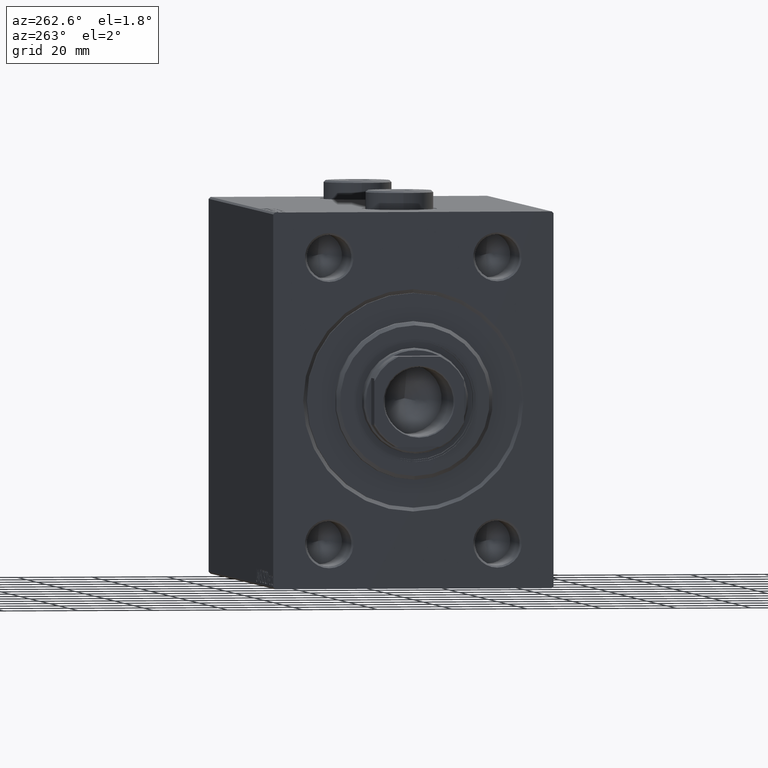
[diagram: clean part render]
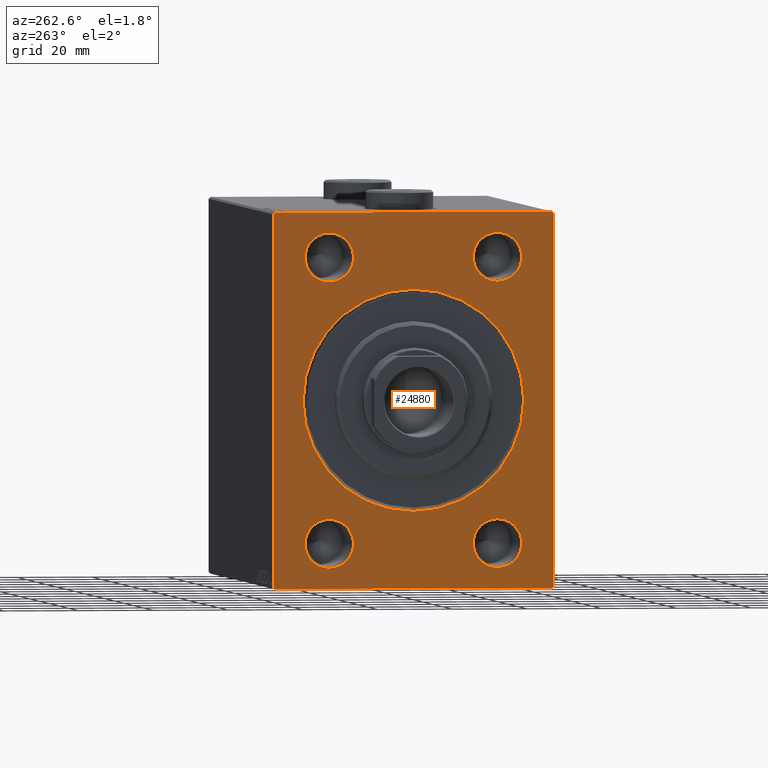
[diagram: same view with one face highlighted and labeled with its STEP entity id]
A machine part, auxiliary view. The second image highlights one B-rep face of the part: STEP entity #24880.
In plain terms, the highlighted planar face has unit normal (1, 0, 0).
Its self-contained STEP definition (entity closure, byte-faithful):
#301 = CIRCLE ( 'NONE', #6180, 6.500000000000005329 ) ;
#668 = EDGE_CURVE ( 'NONE', #698, #16464, #34473, .T. ) ;
#698 = VERTEX_POINT ( 'NONE', #41658 ) ;
#1416 = CARTESIAN_POINT ( 'NONE',  ( 0.000000000000000000, 22.50000000000000000, 37.99999999999999289 ) ) ;
#1634 = CARTESIAN_POINT ( 'NONE',  ( 0.000000000000000000, 37.50000000000000711, -49.50000000000000000 ) ) ;
#1817 = CARTESIAN_POINT ( 'NONE',  ( 0.000000000000000000, 22.50000000000000000, -31.50000000000000000 ) ) ;
#2411 = ORIENTED_EDGE ( 'NONE', *, *, #23372, .T. ) ;
#2767 = ORIENTED_EDGE ( 'NONE', *, *, #19563, .T. ) ;
#2847 = CIRCLE ( 'NONE', #11719, 6.500000000000005329 ) ;
#2970 = VERTEX_POINT ( 'NONE', #5019 ) ;
#3113 = VECTOR ( 'NONE', #23032, 1000.000000000000000 ) ;
#3367 = CARTESIAN_POINT ( 'NONE',  ( 0.000000000000000000, -22.50000000000000000, -44.50000000000001421 ) ) ;
#3968 = EDGE_LOOP ( 'NONE', ( #6667, #5977 ) ) ;
#3976 = LINE ( 'NONE', #32408, #12537 ) ;
#4019 = EDGE_CURVE ( 'NONE', #38139, #36718, #34570, .T. ) ;
#4069 = DIRECTION ( 'NONE',  ( 0.000000000000000000, 0.000000000000000000, -1.000000000000000000 ) ) ;
#4683 = EDGE_CURVE ( 'NONE', #24090, #18145, #10948, .T. ) ;
#4890 = AXIS2_PLACEMENT_3D ( 'NONE', #13887, #14345, #45331 ) ;
#5019 = CARTESIAN_POINT ( 'NONE',  ( 0.000000000000000000, 3.612708057484695548E-15, -29.50000000000002842 ) ) ;
#5309 = VERTEX_POINT ( 'NONE', #10897 ) ;
#5347 = EDGE_CURVE ( 'NONE', #16464, #698, #30203, .T. ) ;
#5411 = VERTEX_POINT ( 'NONE', #7658 ) ;
#5635 = DIRECTION ( 'NONE',  ( 1.000000000000000000, 0.000000000000000000, 0.000000000000000000 ) ) ;
#5653 = CARTESIAN_POINT ( 'NONE',  ( 0.000000000000000000, 22.50000000000000000, 31.49999999999998579 ) ) ;
#5977 = ORIENTED_EDGE ( 'NONE', *, *, #17986, .T. ) ;
#5993 = DIRECTION ( 'NONE',  ( -0.000000000000000000, 0.7071067811865425767, -0.7071067811865525687 ) ) ;
#6180 = AXIS2_PLACEMENT_3D ( 'NONE', #23803, #38109, #10157 ) ;
#6667 = ORIENTED_EDGE ( 'NONE', *, *, #35552, .T. ) ;
#6706 = ORIENTED_EDGE ( 'NONE', *, *, #14516, .F. ) ;
#7471 = FACE_OUTER_BOUND ( 'NONE', #39274, .T. ) ;
#7658 = CARTESIAN_POINT ( 'NONE',  ( 0.000000000000000000, -37.50000000000000000, 49.49999999999995737 ) ) ;
#8328 = EDGE_CURVE ( 'NONE', #18145, #24090, #38977, .T. ) ;
#9764 = DIRECTION ( 'NONE',  ( -0.000000000000000000, -0.7071067811865474617, 0.7071067811865474617 ) ) ;
#10157 = DIRECTION ( 'NONE',  ( 0.000000000000000000, 0.000000000000000000, -1.000000000000000000 ) ) ;
#10593 = LINE ( 'NONE', #24690, #40887 ) ;
#10897 = CARTESIAN_POINT ( 'NONE',  ( 0.000000000000000000, -37.50000000000000000, -49.49999999999997158 ) ) ;
#10948 = CIRCLE ( 'NONE', #24243, 6.500000000000005329 ) ;
#11032 = CARTESIAN_POINT ( 'NONE',  ( 0.000000000000000000, -22.50000000000000000, 31.49999999999998579 ) ) ;
#11255 = CARTESIAN_POINT ( 'NONE',  ( 0.000000000000000000, -22.50000000000000000, 37.99999999999999289 ) ) ;
#11275 = DIRECTION ( 'NONE',  ( 0.000000000000000000, -1.000000000000000000, -2.775557561562891844E-16 ) ) ;
#11342 = VERTEX_POINT ( 'NONE', #43338 ) ;
#11709 = CARTESIAN_POINT ( 'NONE',  ( 0.000000000000000000, 37.50000000000000711, -50.00000000000000000 ) ) ;
#11719 = AXIS2_PLACEMENT_3D ( 'NONE', #11255, #25358, #25134 ) ;
#11778 = EDGE_CURVE ( 'NONE', #5411, #22514, #30357, .T. ) ;
#12259 = EDGE_CURVE ( 'NONE', #25365, #37791, #30186, .T. ) ;
#12267 = ORIENTED_EDGE ( 'NONE', *, *, #11778, .T. ) ;
#12537 = VECTOR ( 'NONE', #18059, 1000.000000000000000 ) ;
#13221 = CARTESIAN_POINT ( 'NONE',  ( 0.000000000000000000, -37.50000000000000000, 49.49999999999995737 ) ) ;
#13599 = CARTESIAN_POINT ( 'NONE',  ( 0.000000000000000000, -22.50000000000000000, 44.50000000000000000 ) ) ;
#13652 = ORIENTED_EDGE ( 'NONE', *, *, #8328, .T. ) ;
#13887 = CARTESIAN_POINT ( 'NONE',  ( 0.000000000000000000, -22.50000000000000000, -38.00000000000000711 ) ) ;
#14345 = DIRECTION ( 'NONE',  ( 1.000000000000000000, 0.000000000000000000, 0.000000000000000000 ) ) ;
#14377 = CARTESIAN_POINT ( 'NONE',  ( 0.000000000000000000, 22.50000000000000000, -44.50000000000001421 ) ) ;
#14384 = FACE_BOUND ( 'NONE', #38874, .T. ) ;
#14433 = CARTESIAN_POINT ( 'NONE',  ( 0.000000000000000000, 37.00000000000001421, -50.00000000000000000 ) ) ;
#14516 = EDGE_CURVE ( 'NONE', #23328, #11342, #33215, .T. ) ;
#15048 = AXIS2_PLACEMENT_3D ( 'NONE', #16172, #15934, #40442 ) ;
#15128 = CARTESIAN_POINT ( 'NONE',  ( 0.000000000000000000, -22.50000000000000000, -38.00000000000000711 ) ) ;
#15182 = LINE ( 'NONE', #42939, #18372 ) ;
#15934 = DIRECTION ( 'NONE',  ( 1.000000000000000000, 0.000000000000000000, 0.000000000000000000 ) ) ;
#15936 = CARTESIAN_POINT ( 'NONE',  ( 0.000000000000000000, 0.000000000000000000, 0.000000000000000000 ) ) ;
#16172 = CARTESIAN_POINT ( 'NONE',  ( 0.000000000000000000, 0.000000000000000000, 0.000000000000000000 ) ) ;
#16464 = VERTEX_POINT ( 'NONE', #5653 ) ;
#16560 = VECTOR ( 'NONE', #9764, 1000.000000000000114 ) ;
#16880 = AXIS2_PLACEMENT_3D ( 'NONE', #1416, #39315, #43473 ) ;
#17409 = CIRCLE ( 'NONE', #4890, 6.500000000000005329 ) ;
#17986 = EDGE_CURVE ( 'NONE', #35490, #19655, #301, .T. ) ;
#18059 = DIRECTION ( 'NONE',  ( 0.000000000000000000, -0.7071067811865426878, -0.7071067811865524577 ) ) ;
#18145 = VERTEX_POINT ( 'NONE', #1817 ) ;
#18328 = AXIS2_PLACEMENT_3D ( 'NONE', #15128, #29034, #4069 ) ;
#18372 = VECTOR ( 'NONE', #11275, 1000.000000000000000 ) ;
#18782 = EDGE_CURVE ( 'NONE', #33218, #11342, #10593, .T. ) ;
#18971 = CARTESIAN_POINT ( 'NONE',  ( 0.000000000000000000, 36.99999999999999289, 50.00000000000000711 ) ) ;
#19137 = ORIENTED_EDGE ( 'NONE', *, *, #41742, .T. ) ;
#19563 = EDGE_CURVE ( 'NONE', #2970, #20326, #37232, .T. ) ;
#19655 = VERTEX_POINT ( 'NONE', #13599 ) ;
#20326 = VERTEX_POINT ( 'NONE', #30630 ) ;
#20616 = ORIENTED_EDGE ( 'NONE', *, *, #4019, .T. ) ;
#20620 = ORIENTED_EDGE ( 'NONE', *, *, #39936, .F. ) ;
#20681 = EDGE_CURVE ( 'NONE', #25365, #5309, #20842, .T. ) ;
#20842 = LINE ( 'NONE', #23401, #16560 ) ;
#20990 = CARTESIAN_POINT ( 'NONE',  ( 0.000000000000000000, -37.00000000000000000, -50.00000000000000000 ) ) ;
#21090 = DIRECTION ( 'NONE',  ( 0.000000000000000000, 0.000000000000000000, -1.000000000000000000 ) ) ;
#21344 = CARTESIAN_POINT ( 'NONE',  ( 0.000000000000000000, 0.000000000000000000, 0.000000000000000000 ) ) ;
#21628 = LINE ( 'NONE', #35499, #32138 ) ;
#22140 = EDGE_CURVE ( 'NONE', #5411, #5309, #21628, .T. ) ;
#22322 = CARTESIAN_POINT ( 'NONE',  ( 0.000000000000000000, -37.50000000000000000, -50.00000000000000000 ) ) ;
#22329 = ORIENTED_EDGE ( 'NONE', *, *, #5347, .T. ) ;
#22514 = VERTEX_POINT ( 'NONE', #43393 ) ;
#22664 = AXIS2_PLACEMENT_3D ( 'NONE', #24332, #31744, #21090 ) ;
#22756 = DIRECTION ( 'NONE',  ( 0.000000000000000000, 0.000000000000000000, -1.000000000000000000 ) ) ;
#23032 = DIRECTION ( 'NONE',  ( 0.000000000000000000, -1.387778780781445676E-16, 1.000000000000000000 ) ) ;
#23328 = VERTEX_POINT ( 'NONE', #1634 ) ;
#23372 = EDGE_CURVE ( 'NONE', #20326, #2970, #29860, .T. ) ;
#23401 = CARTESIAN_POINT ( 'NONE',  ( 0.000000000000000000, -37.00000000000000000, -50.00000000000000000 ) ) ;
#23658 = CARTESIAN_POINT ( 'NONE',  ( 0.000000000000000000, -22.50000000000000000, -31.50000000000000000 ) ) ;
#23803 = CARTESIAN_POINT ( 'NONE',  ( 0.000000000000000000, -22.50000000000000000, 37.99999999999999289 ) ) ;
#24090 = VERTEX_POINT ( 'NONE', #14377 ) ;
#24105 = EDGE_LOOP ( 'NONE', ( #40189, #22329 ) ) ;
#24243 = AXIS2_PLACEMENT_3D ( 'NONE', #30458, #40834, #37598 ) ;
#24332 = CARTESIAN_POINT ( 'NONE',  ( 0.000000000000000000, 22.50000000000000000, 37.99999999999999289 ) ) ;
#24690 = CARTESIAN_POINT ( 'NONE',  ( 0.000000000000000000, 36.99999999999999289, 50.00000000000000711 ) ) ;
#24705 = DIRECTION ( 'NONE',  ( -0.000000000000000000, 0.7071067811865524577, 0.7071067811865426878 ) ) ;
#24795 = FACE_BOUND ( 'NONE', #24105, .T. ) ;
#24880 = ADVANCED_FACE ( 'NONE', ( #28751, #14384, #28284, #24795, #38878, #7471 ), #43041, .F. ) ;
#25134 = DIRECTION ( 'NONE',  ( 0.000000000000000000, 0.000000000000000000, -1.000000000000000000 ) ) ;
#25358 = DIRECTION ( 'NONE',  ( 1.000000000000000000, 0.000000000000000000, 0.000000000000000000 ) ) ;
#25365 = VERTEX_POINT ( 'NONE', #20990 ) ;
#26323 = EDGE_LOOP ( 'NONE', ( #13652, #34046 ) ) ;
#28284 = FACE_BOUND ( 'NONE', #3968, .T. ) ;
#28751 = FACE_BOUND ( 'NONE', #33843, .T. ) ;
#29034 = DIRECTION ( 'NONE',  ( 1.000000000000000000, 0.000000000000000000, 0.000000000000000000 ) ) ;
#29708 = EDGE_CURVE ( 'NONE', #36718, #38139, #17409, .T. ) ;
#29860 = CIRCLE ( 'NONE', #43098, 29.50000000000002842 ) ;
#29938 = ORIENTED_EDGE ( 'NONE', *, *, #20681, .T. ) ;
#30186 = LINE ( 'NONE', #22322, #31023 ) ;
#30203 = CIRCLE ( 'NONE', #16880, 6.500000000000005329 ) ;
#30357 = LINE ( 'NONE', #13221, #38346 ) ;
#30458 = CARTESIAN_POINT ( 'NONE',  ( 0.000000000000000000, 22.50000000000000000, -38.00000000000000711 ) ) ;
#30630 = CARTESIAN_POINT ( 'NONE',  ( 0.000000000000000000, 0.000000000000000000, 29.50000000000002842 ) ) ;
#31023 = VECTOR ( 'NONE', #43808, 1000.000000000000000 ) ;
#31744 = DIRECTION ( 'NONE',  ( 1.000000000000000000, 0.000000000000000000, 0.000000000000000000 ) ) ;
#31976 = DIRECTION ( 'NONE',  ( 1.000000000000000000, 0.000000000000000000, 0.000000000000000000 ) ) ;
#32138 = VECTOR ( 'NONE', #36178, 1000.000000000000000 ) ;
#32408 = CARTESIAN_POINT ( 'NONE',  ( 0.000000000000000000, 37.50000000000000711, -49.50000000000000000 ) ) ;
#32835 = ORIENTED_EDGE ( 'NONE', *, *, #22140, .F. ) ;
#33215 = LINE ( 'NONE', #11709, #3113 ) ;
#33218 = VERTEX_POINT ( 'NONE', #18971 ) ;
#33843 = EDGE_LOOP ( 'NONE', ( #2411, #2767 ) ) ;
#34046 = ORIENTED_EDGE ( 'NONE', *, *, #4683, .T. ) ;
#34473 = CIRCLE ( 'NONE', #22664, 6.500000000000005329 ) ;
#34570 = CIRCLE ( 'NONE', #18328, 6.500000000000005329 ) ;
#35436 = DIRECTION ( 'NONE',  ( 0.000000000000000000, 0.000000000000000000, -1.000000000000000000 ) ) ;
#35490 = VERTEX_POINT ( 'NONE', #11032 ) ;
#35499 = CARTESIAN_POINT ( 'NONE',  ( 0.000000000000000000, -37.50000000000000000, 49.99999999999998579 ) ) ;
#35552 = EDGE_CURVE ( 'NONE', #19655, #35490, #2847, .T. ) ;
#36178 = DIRECTION ( 'NONE',  ( 0.000000000000000000, 0.000000000000000000, -1.000000000000000000 ) ) ;
#36718 = VERTEX_POINT ( 'NONE', #3367 ) ;
#37207 = DIRECTION ( 'NONE',  ( 1.000000000000000000, 0.000000000000000000, 0.000000000000000000 ) ) ;
#37227 = AXIS2_PLACEMENT_3D ( 'NONE', #21344, #31976, #35436 ) ;
#37232 = CIRCLE ( 'NONE', #15048, 29.50000000000002842 ) ;
#37598 = DIRECTION ( 'NONE',  ( 0.000000000000000000, 0.000000000000000000, -1.000000000000000000 ) ) ;
#37791 = VERTEX_POINT ( 'NONE', #14433 ) ;
#38109 = DIRECTION ( 'NONE',  ( 1.000000000000000000, 0.000000000000000000, 0.000000000000000000 ) ) ;
#38139 = VERTEX_POINT ( 'NONE', #23658 ) ;
#38346 = VECTOR ( 'NONE', #24705, 1000.000000000000000 ) ;
#38874 = EDGE_LOOP ( 'NONE', ( #20616, #42291 ) ) ;
#38878 = FACE_BOUND ( 'NONE', #26323, .T. ) ;
#38977 = CIRCLE ( 'NONE', #40469, 6.500000000000005329 ) ;
#39274 = EDGE_LOOP ( 'NONE', ( #32835, #12267, #20620, #40130, #6706, #19137, #45471, #29938 ) ) ;
#39315 = DIRECTION ( 'NONE',  ( 1.000000000000000000, 0.000000000000000000, 0.000000000000000000 ) ) ;
#39936 = EDGE_CURVE ( 'NONE', #33218, #22514, #15182, .T. ) ;
#40130 = ORIENTED_EDGE ( 'NONE', *, *, #18782, .T. ) ;
#40189 = ORIENTED_EDGE ( 'NONE', *, *, #668, .T. ) ;
#40307 = CARTESIAN_POINT ( 'NONE',  ( 0.000000000000000000, 22.50000000000000000, -38.00000000000000711 ) ) ;
#40442 = DIRECTION ( 'NONE',  ( 0.000000000000000000, 0.000000000000000000, -1.000000000000000000 ) ) ;
#40469 = AXIS2_PLACEMENT_3D ( 'NONE', #40307, #5635, #22756 ) ;
#40834 = DIRECTION ( 'NONE',  ( 1.000000000000000000, 0.000000000000000000, 0.000000000000000000 ) ) ;
#40887 = VECTOR ( 'NONE', #5993, 999.9999999999998863 ) ;
#41658 = CARTESIAN_POINT ( 'NONE',  ( 0.000000000000000000, 22.50000000000000000, 44.50000000000000000 ) ) ;
#41742 = EDGE_CURVE ( 'NONE', #23328, #37791, #3976, .T. ) ;
#42291 = ORIENTED_EDGE ( 'NONE', *, *, #29708, .T. ) ;
#42939 = CARTESIAN_POINT ( 'NONE',  ( 0.000000000000000000, 37.49999999999999289, 50.00000000000000711 ) ) ;
#43041 = PLANE ( 'NONE',  #37227 ) ;
#43098 = AXIS2_PLACEMENT_3D ( 'NONE', #15936, #37207, #44149 ) ;
#43338 = CARTESIAN_POINT ( 'NONE',  ( 0.000000000000000000, 37.49999999999999289, 49.50000000000000000 ) ) ;
#43393 = CARTESIAN_POINT ( 'NONE',  ( 0.000000000000000000, -36.99999999999996447, 49.99999999999998579 ) ) ;
#43473 = DIRECTION ( 'NONE',  ( 0.000000000000000000, 0.000000000000000000, -1.000000000000000000 ) ) ;
#43808 = DIRECTION ( 'NONE',  ( 0.000000000000000000, 1.000000000000000000, 0.000000000000000000 ) ) ;
#44149 = DIRECTION ( 'NONE',  ( 0.000000000000000000, 0.000000000000000000, -1.000000000000000000 ) ) ;
#45331 = DIRECTION ( 'NONE',  ( 0.000000000000000000, 0.000000000000000000, -1.000000000000000000 ) ) ;
#45471 = ORIENTED_EDGE ( 'NONE', *, *, #12259, .F. ) ;